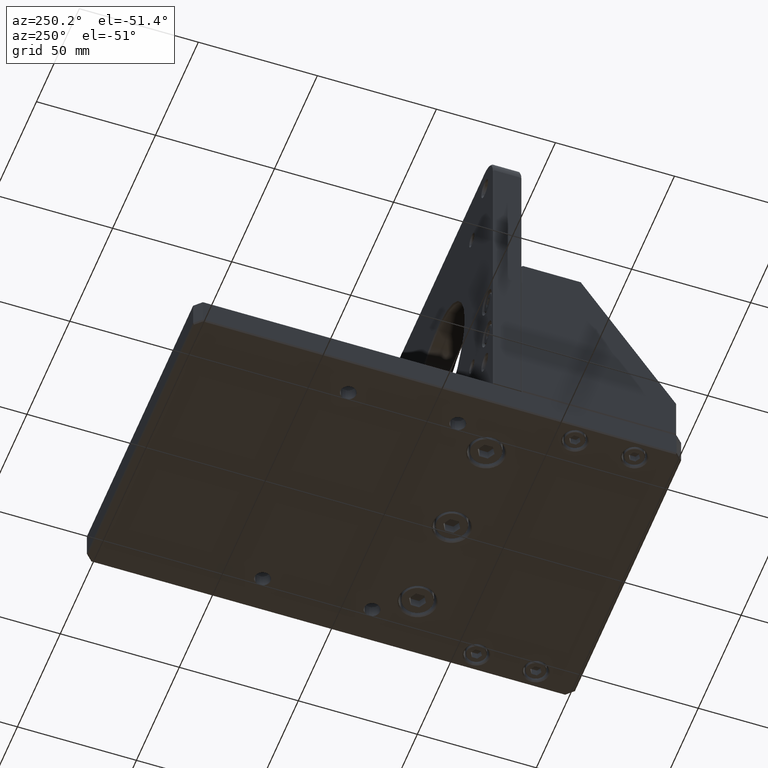
[diagram: clean part render]
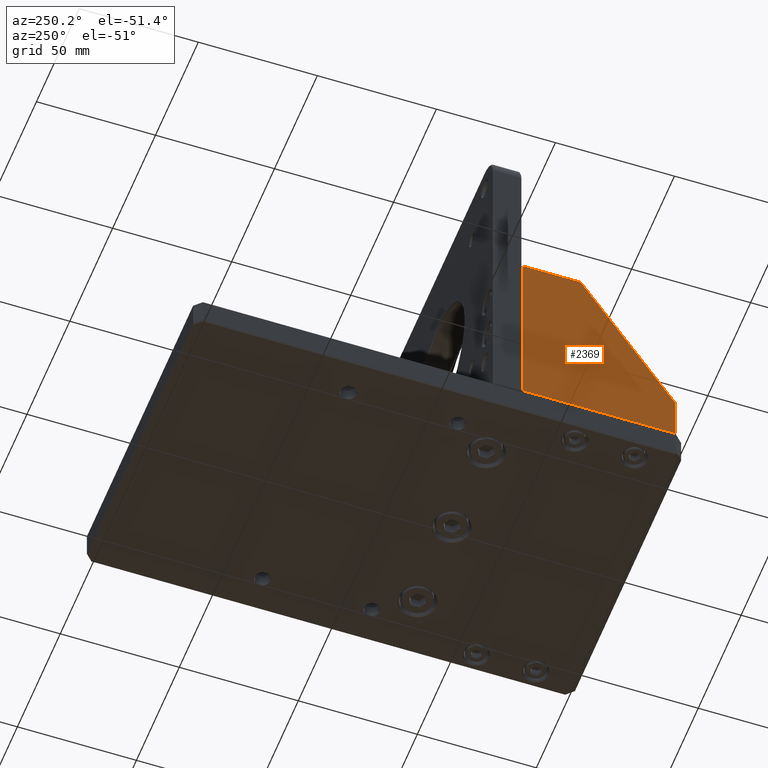
[diagram: same view with one face highlighted and labeled with its STEP entity id]
A machine part, auxiliary view. The second image highlights one B-rep face of the part: STEP entity #2369.
In plain terms, the highlighted planar face has unit normal (1, 0, -0).
Its self-contained STEP definition (entity closure, byte-faithful):
#184 = CARTESIAN_POINT ( 'NONE',  ( -64.99999999999820943, -59.23240812075694350, 91.50000000000066791 ) ) ;
#324 = ORIENTED_EDGE ( 'NONE', *, *, #11854, .T. ) ;
#506 = CARTESIAN_POINT ( 'NONE',  ( -64.99999999999938893, -34.50000000000093792, 12.00000000000066436 ) ) ;
#734 = VERTEX_POINT ( 'NONE', #6373 ) ;
#890 = CARTESIAN_POINT ( 'NONE',  ( -64.99999999999937472, -35.00000000000092371, 12.00000000000066436 ) ) ;
#1150 = VERTEX_POINT ( 'NONE', #6664 ) ;
#1248 = VECTOR ( 'NONE', #12665, 1000.000000000000000 ) ;
#1747 = ORIENTED_EDGE ( 'NONE', *, *, #7981, .T. ) ;
#1828 = LINE ( 'NONE', #7672, #12218 ) ;
#2097 = LINE ( 'NONE', #890, #6492 ) ;
#2323 = LINE ( 'NONE', #12526, #1248 ) ;
#2369 = ADVANCED_FACE ( 'NONE', ( #7476 ), #5496, .F. ) ;
#2591 = CARTESIAN_POINT ( 'NONE',  ( -64.99999999999937472, -35.00000000000092371, 12.50000000000066436 ) ) ;
#2809 = VERTEX_POINT ( 'NONE', #4858 ) ;
#2830 = LINE ( 'NONE', #3035, #9864 ) ;
#3035 = CARTESIAN_POINT ( 'NONE',  ( -64.99999999999849365, -99.00000000000095213, 12.00000000000066436 ) ) ;
#4066 = ORIENTED_EDGE ( 'NONE', *, *, #12214, .T. ) ;
#4481 = VERTEX_POINT ( 'NONE', #2591 ) ;
#4532 = LINE ( 'NONE', #9768, #9615 ) ;
#4788 = DIRECTION ( 'NONE',  ( -1.396592535537253342E-14, 1.000000000000000000, 1.462853032738780738E-28 ) ) ;
#4858 = CARTESIAN_POINT ( 'NONE',  ( -64.99999999999855049, -35.00000000000092371, 91.50000000000066791 ) ) ;
#5496 = PLANE ( 'NONE',  #8761 ) ;
#6143 = DIRECTION ( 'NONE',  ( -1.047444401652940007E-14, 0.0000000000000000000, -1.000000000000000000 ) ) ;
#6197 = EDGE_CURVE ( 'NONE', #734, #1150, #2830, .T. ) ;
#6373 = CARTESIAN_POINT ( 'NONE',  ( -64.99999999999847944, -99.00000000000095213, 12.50000000000068567 ) ) ;
#6492 = VECTOR ( 'NONE', #6143, 1000.000000000000000 ) ;
#6664 = CARTESIAN_POINT ( 'NONE',  ( -64.99999999999828049, -99.00000000000095213, 31.84861218113469050 ) ) ;
#6942 = ORIENTED_EDGE ( 'NONE', *, *, #8709, .T. ) ;
#7476 = FACE_OUTER_BOUND ( 'NONE', #9342, .T. ) ;
#7672 = CARTESIAN_POINT ( 'NONE',  ( -64.99999999999825206, -88.31474408360125494, 47.87649605573421496 ) ) ;
#7981 = EDGE_CURVE ( 'NONE', #4481, #734, #2323, .T. ) ;
#8415 = DIRECTION ( 'NONE',  ( 1.000000000000000000, 1.396592535537253342E-14, -1.047444401652940007E-14 ) ) ;
#8709 = EDGE_CURVE ( 'NONE', #2809, #4481, #2097, .T. ) ;
#8761 = AXIS2_PLACEMENT_3D ( 'NONE', #506, #8415, #11523 ) ;
#9312 = ORIENTED_EDGE ( 'NONE', *, *, #6197, .T. ) ;
#9342 = EDGE_LOOP ( 'NONE', ( #6942, #1747, #9312, #324, #4066 ) ) ;
#9615 = VECTOR ( 'NONE', #4788, 1000.000000000000000 ) ;
#9768 = CARTESIAN_POINT ( 'NONE',  ( -64.99999999999856470, -34.50000000000093792, 91.50000000000066791 ) ) ;
#9864 = VECTOR ( 'NONE', #11982, 1000.000000000000000 ) ;
#11523 = DIRECTION ( 'NONE',  ( -1.047444401652940007E-14, 0.0000000000000000000, -1.000000000000000000 ) ) ;
#11609 = VERTEX_POINT ( 'NONE', #184 ) ;
#11854 = EDGE_CURVE ( 'NONE', #1150, #11609, #1828, .T. ) ;
#11982 = DIRECTION ( 'NONE',  ( 1.047444401652940007E-14, 0.0000000000000000000, 1.000000000000000000 ) ) ;
#12214 = EDGE_CURVE ( 'NONE', #11609, #2809, #4532, .T. ) ;
#12218 = VECTOR ( 'NONE', #12650, 1000.000000000000114 ) ;
#12526 = CARTESIAN_POINT ( 'NONE',  ( -64.99999999999937472, -34.50000000000093792, 12.50000000000066436 ) ) ;
#12650 = DIRECTION ( 'NONE',  ( 9.683626918865031992E-16, 0.5547001962252291474, 0.8320502943378436100 ) ) ;
#12665 = DIRECTION ( 'NONE',  ( 1.396592535537253658E-14, -1.000000000000000000, 3.311995080573716721E-16 ) ) ;